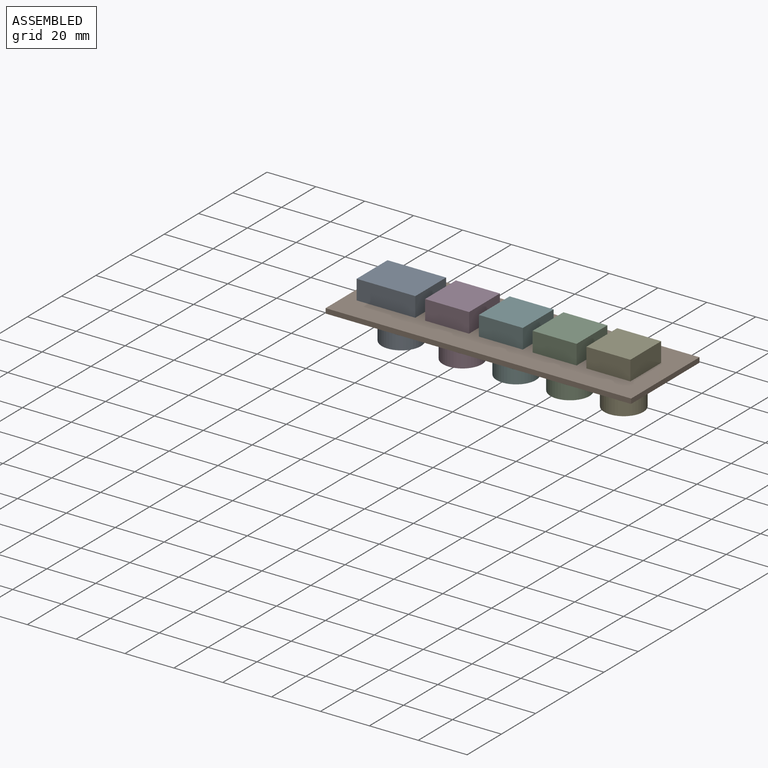
[diagram: assembled view]
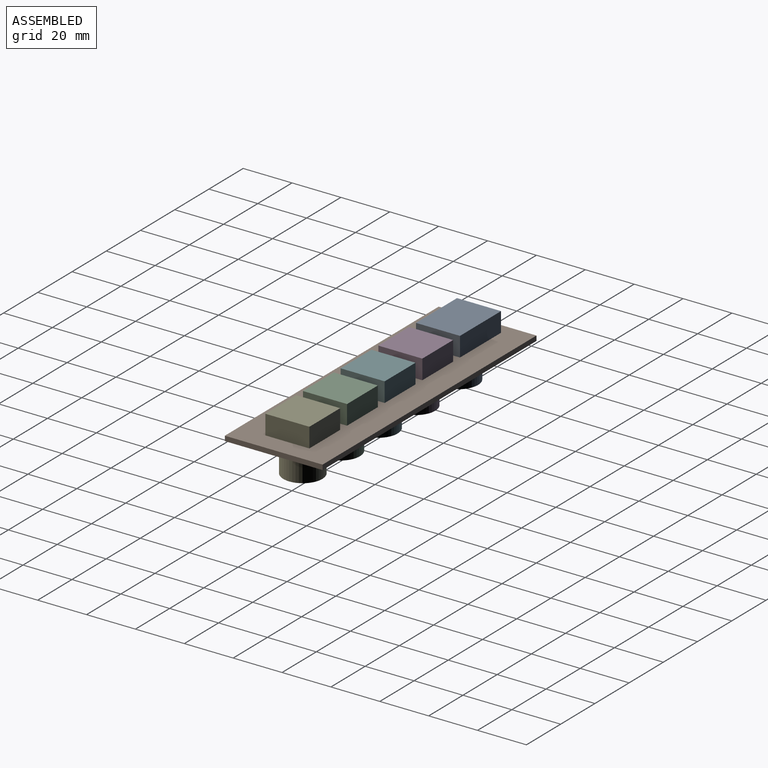
[diagram: assembled view, second angle]
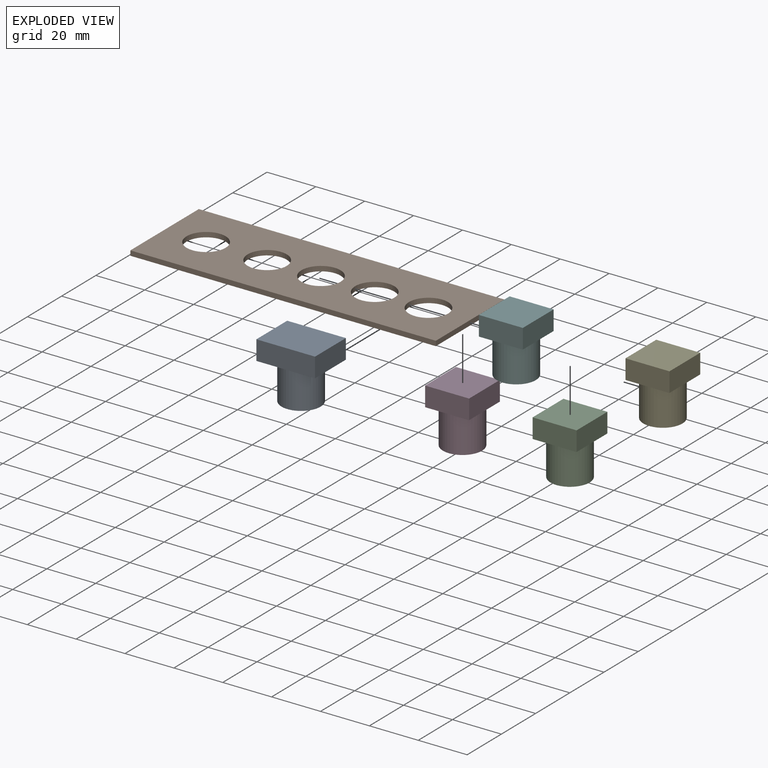
[diagram: exploded view]
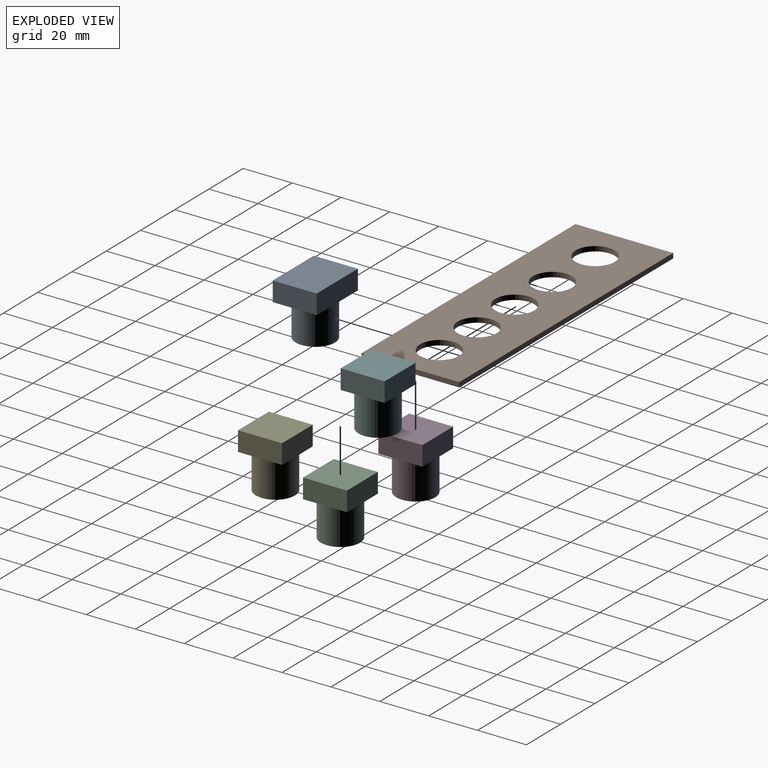
[diagram: exploded view, second angle]
ASSEMBLY  parts=6 mates=5
PART A: 8 faces, bbox 24x18x23 mm
  f0: plane 18x8mm, normal (-1,0,0), area 144mm2, adj f1,f3,f4,f5
  f1: plane 24x8mm, normal (0,-1,0), area 192mm2, adj f0,f2,f4,f5
  f2: plane 18x8mm, normal (1,0,0), area 144mm2, adj f1,f3,f4,f5
  f3: plane 24x8mm, normal (0,1,0), area 192mm2, adj f0,f2,f4,f5
  f4: plane 24x18mm, normal (0,0,1), area 432mm2, adj f0,f1,f2,f3
  f5: plane 24x18mm, normal (0,0,-1), area 230.9mm2, adj f0,f1,f2,f3,f6
  f6: cylinder r=8mm len=16mm, axis (0,0,1), area 754mm2, adj f5,f7
  f7: plane 16x16mm, normal (0,0,-1), area 201.1mm2, adj f6
PART B: 11 faces, bbox 125x40x2 mm
  f0: plane 40x2mm, normal (-1,0,0), area 80mm2, adj f1,f7,f9,f10
  f1: plane 125x2mm, normal (0,-1,0), area 250mm2, adj f0,f2,f9,f10
  f2: plane 40x2mm, normal (1,0,0), area 80mm2, adj f1,f7,f9,f10
  f3: cylinder r=8mm len=16mm, axis (0,0,-1), area 100.5mm2, adj f9,f10
  f4: cylinder r=8mm len=16mm, axis (0,0,-1), area 100.5mm2, adj f9,f10
  f5: cylinder r=8mm len=16mm, axis (0,0,-1), area 100.5mm2, adj f9,f10
  f6: cylinder r=8mm len=16mm, axis (0,0,-1), area 100.5mm2, adj f9,f10
  f7: plane 125x2mm, normal (0,1,0), area 250mm2, adj f0,f2,f9,f10
  f8: cylinder r=8mm len=16mm, axis (0,0,-1), area 100.5mm2, adj f9,f10
  f9: plane 125x40mm, normal (0,0,1), area 3994.7mm2, adj f0,f1,f2,f3,f4,f5,f6,f7
  f10: plane 125x40mm, normal (0,0,-1), area 3994.7mm2, adj f0,f1,f2,f3,f4,f5,f6,f7
PART C: 8 faces, bbox 18x18x23 mm
  f0: plane 18x8mm, normal (-1,0,0), area 144mm2, adj f1,f3,f4,f5
  f1: plane 18x8mm, normal (0,-1,0), area 144mm2, adj f0,f2,f4,f5
  f2: plane 18x8mm, normal (1,0,0), area 144mm2, adj f1,f3,f4,f5
  f3: plane 18x8mm, normal (0,1,0), area 144mm2, adj f0,f2,f4,f5
  f4: plane 18x18mm, normal (0,0,1), area 324mm2, adj f0,f1,f2,f3
  f5: plane 18x18mm, normal (0,0,-1), area 122.9mm2, adj f0,f1,f2,f3,f6
  f6: cylinder r=8mm len=16mm, axis (0,0,1), area 754mm2, adj f5,f7
  f7: plane 16x16mm, normal (0,0,-1), area 201.1mm2, adj f6
PART D: same geometry as C
PART E: same geometry as C
PART F: same geometry as C
PLACE A t=(3.26,27.86,40.47)mm
PLACE B t=(-1.74,16.86,38.47)mm
PLACE C t=(75.26,27.86,40.47)mm
PLACE D t=(31.26,27.86,40.47)mm
PLACE E t=(97.26,27.86,40.47)mm
PLACE F t=(53.26,27.86,40.47)mm
MATE fastened A.f6 <-> B.f6  axis (0,0,-1) through (15.26,36.86,40.47)mm
MATE fastened C.f6 <-> B.f3  axis (0,0,1) through (84.26,36.86,40.47)mm
MATE fastened D.f6 <-> B.f5  axis (0,0,1) through (40.26,36.86,40.47)mm
MATE fastened F.f6 <-> B.f4  axis (0,0,-1) through (62.26,36.86,40.47)mm
MATE fastened E.f6 <-> B.f8  axis (0,0,-1) through (106.26,36.86,40.47)mm
